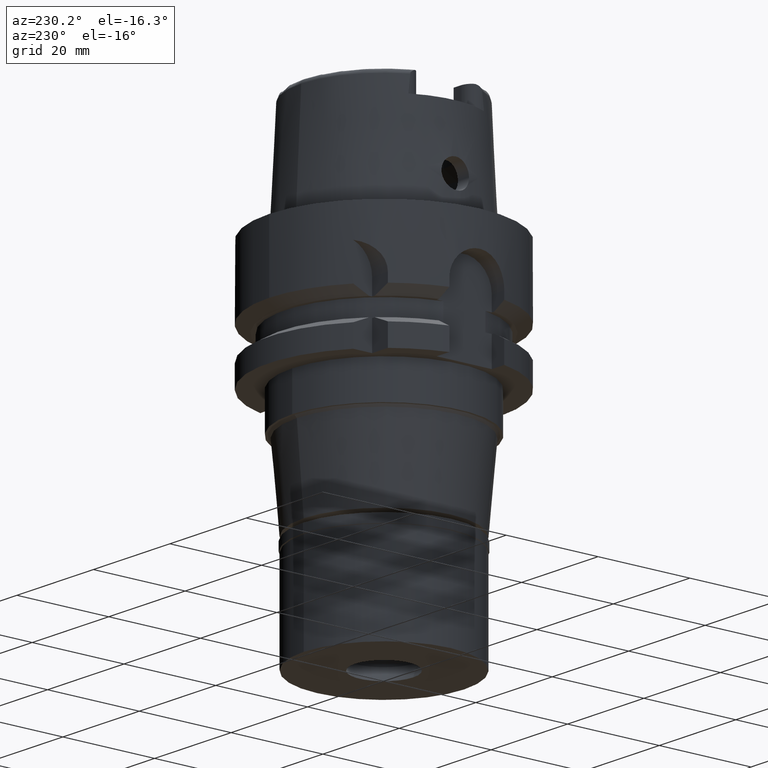
[diagram: clean part render]
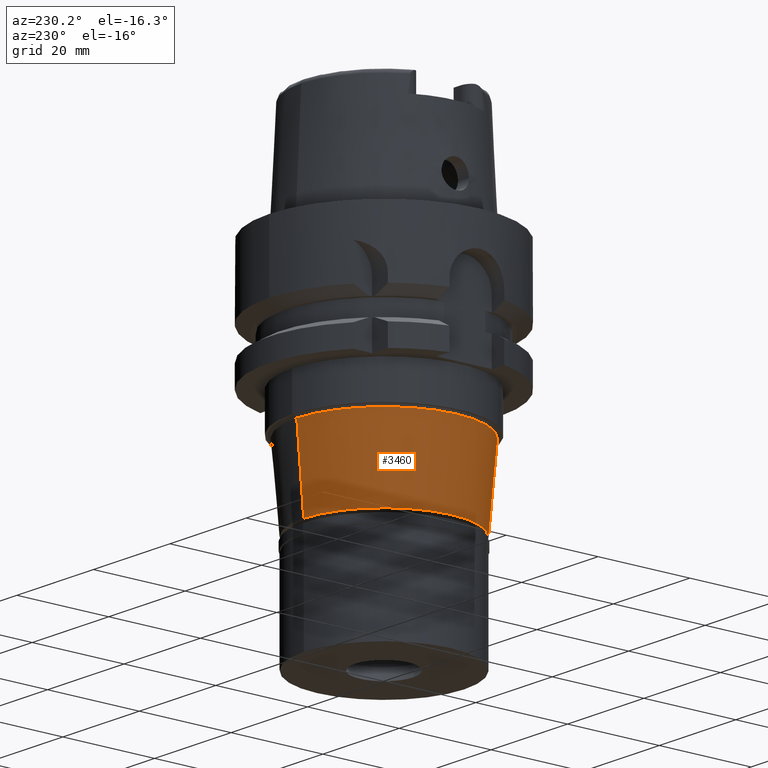
[diagram: same view with one face highlighted and labeled with its STEP entity id]
A machine part, auxiliary view. The second image highlights one B-rep face of the part: STEP entity #3460.
In plain terms, the highlighted conical surface has half-angle 5 deg.
Its self-contained STEP definition (entity closure, byte-faithful):
#18 = VERTEX_POINT ( 'NONE', #4824 ) ;
#56 = LINE ( 'NONE', #854, #4506 ) ;
#190 = AXIS2_PLACEMENT_3D ( 'NONE', #3565, #1460, #4799 ) ;
#256 = CONICAL_SURFACE ( 'NONE', #3535, 18.25240250631999928, 0.08726646259969973729 ) ;
#854 = CARTESIAN_POINT ( 'NONE',  ( 0.0000000000000000000, 19.00480501264999944, -34.50000000000000000 ) ) ;
#865 = DIRECTION ( 'NONE',  ( 0.0000000000000000000, -1.000000000000000000, 0.0000000000000000000 ) ) ;
#1141 = EDGE_LOOP ( 'NONE', ( #1469, #3376, #4004, #2074 ) ) ;
#1185 = CARTESIAN_POINT ( 'NONE',  ( 0.0000000000000000000, 0.0000000000000000000, -43.10000000000000142 ) ) ;
#1228 = VECTOR ( 'NONE', #2158, 1000.000000000000227 ) ;
#1295 = LINE ( 'NONE', #2627, #1228 ) ;
#1460 = DIRECTION ( 'NONE',  ( 0.0000000000000000000, 0.0000000000000000000, 1.000000000000000000 ) ) ;
#1469 = ORIENTED_EDGE ( 'NONE', *, *, #4775, .T. ) ;
#1600 = CIRCLE ( 'NONE', #4711, 19.00480501264999944 ) ;
#2074 = ORIENTED_EDGE ( 'NONE', *, *, #2377, .T. ) ;
#2158 = DIRECTION ( 'NONE',  ( 0.0000000000000000000, 0.08715574274780288344, -0.9961946980917327776 ) ) ;
#2309 = CIRCLE ( 'NONE', #190, 17.50000000000000000 ) ;
#2377 = EDGE_CURVE ( 'NONE', #18, #5076, #56, .T. ) ;
#2627 = CARTESIAN_POINT ( 'NONE',  ( 0.0000000000000000000, -19.00480501264999944, -34.50000000000000000 ) ) ;
#2875 = DIRECTION ( 'NONE',  ( 0.0000000000000000000, 1.000000000000000000, 0.0000000000000000000 ) ) ;
#3174 = VERTEX_POINT ( 'NONE', #4342 ) ;
#3376 = ORIENTED_EDGE ( 'NONE', *, *, #3663, .F. ) ;
#3460 = ADVANCED_FACE ( 'NONE', ( #4376 ), #256, .T. ) ;
#3535 = AXIS2_PLACEMENT_3D ( 'NONE', #1185, #4610, #2875 ) ;
#3565 = CARTESIAN_POINT ( 'NONE',  ( 0.0000000000000000000, 0.0000000000000000000, -51.70000000000000284 ) ) ;
#3663 = EDGE_CURVE ( 'NONE', #3664, #3174, #1295, .T. ) ;
#3664 = VERTEX_POINT ( 'NONE', #4313 ) ;
#4004 = ORIENTED_EDGE ( 'NONE', *, *, #4735, .T. ) ;
#4230 = CARTESIAN_POINT ( 'NONE',  ( 0.0000000000000000000, 17.50000000000000000, -51.70000000000000284 ) ) ;
#4272 = CARTESIAN_POINT ( 'NONE',  ( 0.0000000000000000000, 0.0000000000000000000, -34.50000000000000000 ) ) ;
#4313 = CARTESIAN_POINT ( 'NONE',  ( 0.0000000000000000000, -19.00480501264999944, -34.50000000000000000 ) ) ;
#4342 = CARTESIAN_POINT ( 'NONE',  ( 0.0000000000000000000, -17.50000000000000000, -51.70000000000000284 ) ) ;
#4376 = FACE_OUTER_BOUND ( 'NONE', #1141, .T. ) ;
#4506 = VECTOR ( 'NONE', #4730, 1000.000000000000227 ) ;
#4610 = DIRECTION ( 'NONE',  ( 0.0000000000000000000, 0.0000000000000000000, 1.000000000000000000 ) ) ;
#4711 = AXIS2_PLACEMENT_3D ( 'NONE', #4272, #5047, #865 ) ;
#4730 = DIRECTION ( 'NONE',  ( 0.0000000000000000000, -0.08715574274780288344, -0.9961946980917327776 ) ) ;
#4735 = EDGE_CURVE ( 'NONE', #3664, #18, #1600, .T. ) ;
#4775 = EDGE_CURVE ( 'NONE', #5076, #3174, #2309, .T. ) ;
#4799 = DIRECTION ( 'NONE',  ( 0.0000000000000000000, 1.000000000000000000, 0.0000000000000000000 ) ) ;
#4824 = CARTESIAN_POINT ( 'NONE',  ( 0.0000000000000000000, 19.00480501264999944, -34.50000000000000000 ) ) ;
#5047 = DIRECTION ( 'NONE',  ( 0.0000000000000000000, 0.0000000000000000000, -1.000000000000000000 ) ) ;
#5076 = VERTEX_POINT ( 'NONE', #4230 ) ;